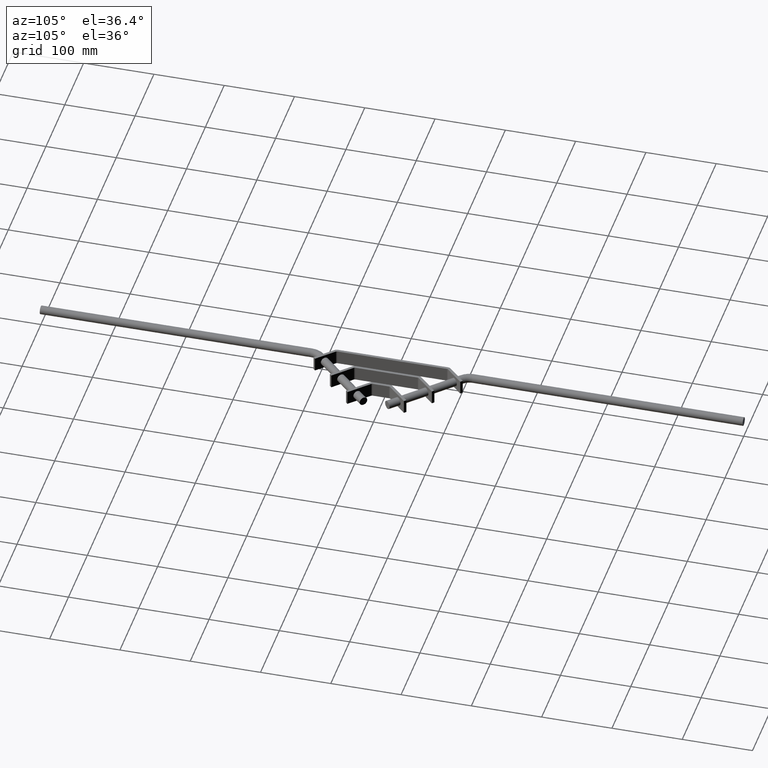
[diagram: clean part render]
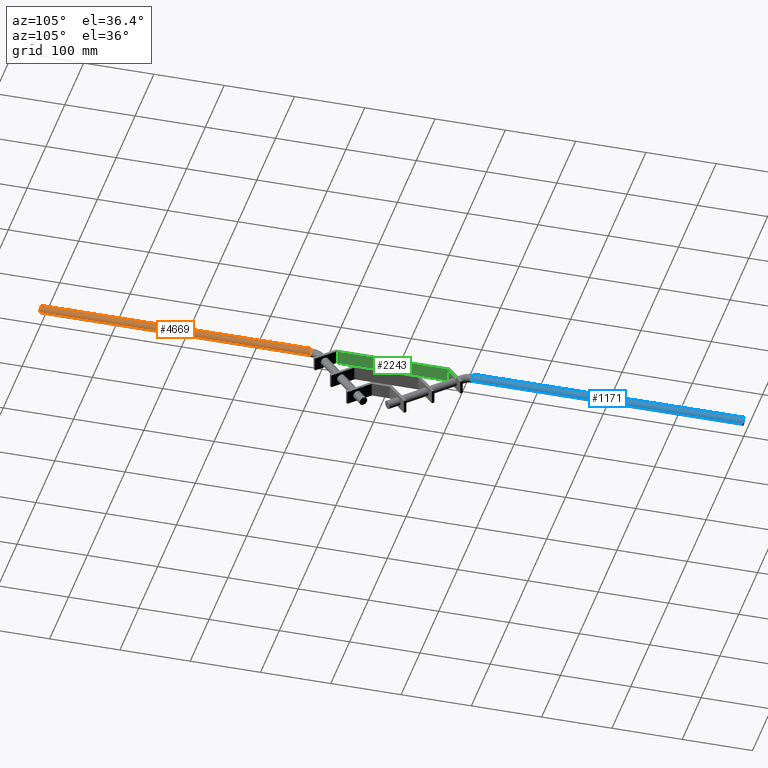
[diagram: same view with three faces highlighted in distinct colors, each labeled with its STEP entity id]
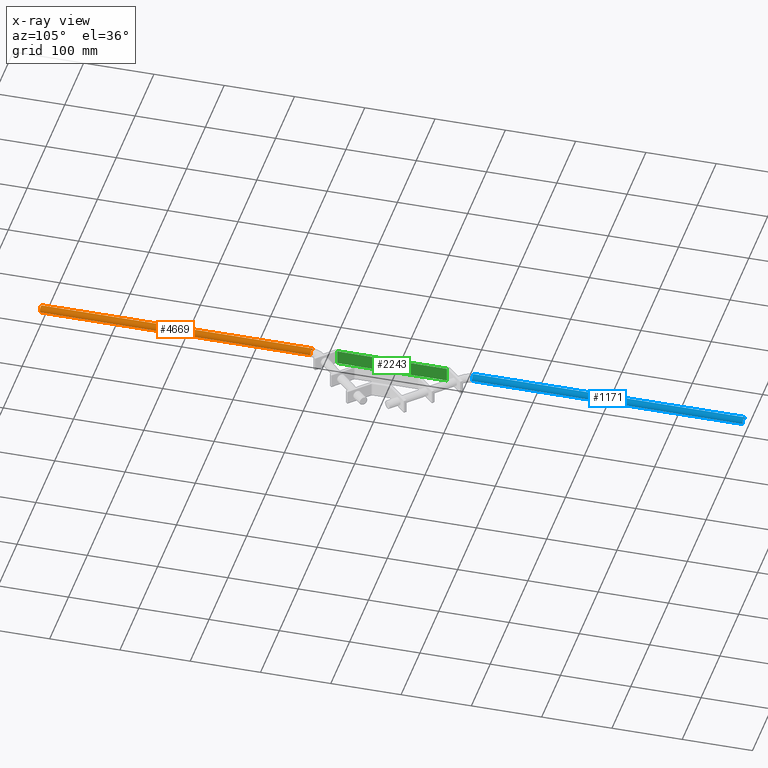
[diagram: x-ray of the same camera — body ghosted, the three highlighted faces saturated]
A machine part, auxiliary view with three faces highlighted in distinct colors.
The next image is the same camera in x-ray (body ghosted, the three faces saturated) — at least one of them is partly hidden behind the body in this view.
Their STEP definitions:

[orange] entity #4669 — the highlighted cylindrical surface (edge-blend (fillet) strip) has radius 6 mm, axis along (0, -1, -0).
#81 = CARTESIAN_POINT ( 'NONE',  ( 5.999999999998562900, 385.0000000000000000, 0.0000000000000000000 ) ) ;
#168 = CARTESIAN_POINT ( 'NONE',  ( -1.438518118988952300E-012, 385.0000000000000000, 0.0000000000000000000 ) ) ;
#209 = DIRECTION ( 'NONE',  ( 1.000000000000000000, 0.0000000000000000000, 0.0000000000000000000 ) ) ;
#376 = VECTOR ( 'NONE', #3222, 1000.000000000000000 ) ;
#455 = EDGE_CURVE ( 'NONE', #661, #5381, #4610, .T. ) ;
#470 = AXIS2_PLACEMENT_3D ( 'NONE', #5562, #1893, #6149 ) ;
#569 = LINE ( 'NONE', #81, #376 ) ;
#661 = VERTEX_POINT ( 'NONE', #3376 ) ;
#819 = DIRECTION ( 'NONE',  ( 0.0000000000000000000, 0.0000000000000000000, 1.000000000000000000 ) ) ;
#918 = CARTESIAN_POINT ( 'NONE',  ( 5.999999999998562900, 385.0000000000000000, 0.0000000000000000000 ) ) ;
#1893 = DIRECTION ( 'NONE',  ( 0.0000000000000000000, 1.000000000000000000, 0.0000000000000000000 ) ) ;
#2014 = VERTEX_POINT ( 'NONE', #6113 ) ;
#2135 = DIRECTION ( 'NONE',  ( 3.736410698672603700E-015, -1.000000000000000000, -0.0000000000000000000 ) ) ;
#2162 = CARTESIAN_POINT ( 'NONE',  ( -6.000000000001438800, 385.0000000000000000, 7.347880794884120700E-016 ) ) ;
#3222 = DIRECTION ( 'NONE',  ( 3.736410698672603700E-015, -1.000000000000000000, -0.0000000000000000000 ) ) ;
#3376 = CARTESIAN_POINT ( 'NONE',  ( -6.000000000001438800, 385.0000000000000000, 7.347880794885001300E-016 ) ) ;
#3384 = FACE_OUTER_BOUND ( 'NONE', #7785, .T. ) ;
#3504 = EDGE_CURVE ( 'NONE', #5381, #3822, #569, .T. ) ;
#3602 = AXIS2_PLACEMENT_3D ( 'NONE', #168, #4538, #819 ) ;
#3650 = EDGE_CURVE ( 'NONE', #661, #2014, #3771, .T. ) ;
#3771 = LINE ( 'NONE', #2162, #6984 ) ;
#3822 = VERTEX_POINT ( 'NONE', #5323 ) ;
#3829 = ORIENTED_EDGE ( 'NONE', *, *, #3504, .F. ) ;
#4538 = DIRECTION ( 'NONE',  ( 0.0000000000000000000, 1.000000000000000000, 0.0000000000000000000 ) ) ;
#4575 = CARTESIAN_POINT ( 'NONE',  ( -1.438518118988952300E-012, 385.0000000000000000, 0.0000000000000000000 ) ) ;
#4610 = CIRCLE ( 'NONE', #3602, 6.000000000000000900 ) ;
#4638 = CYLINDRICAL_SURFACE ( 'NONE', #7240, 6.000000000000000900 ) ;
#4669 = ADVANCED_FACE ( 'NONE', ( #3384 ), #4638, .T. ) ;
#5323 = CARTESIAN_POINT ( 'NONE',  ( 6.000000000000000900, 0.0000000000000000000, 0.0000000000000000000 ) ) ;
#5381 = VERTEX_POINT ( 'NONE', #918 ) ;
#5562 = CARTESIAN_POINT ( 'NONE',  ( 0.0000000000000000000, 0.0000000000000000000, 0.0000000000000000000 ) ) ;
#5566 = CIRCLE ( 'NONE', #470, 6.000000000000000900 ) ;
#6113 = CARTESIAN_POINT ( 'NONE',  ( -6.000000000000000900, 0.0000000000000000000, 7.347880794884120700E-016 ) ) ;
#6149 = DIRECTION ( 'NONE',  ( 0.0000000000000000000, 0.0000000000000000000, 1.000000000000000000 ) ) ;
#6174 = ORIENTED_EDGE ( 'NONE', *, *, #3650, .T. ) ;
#6406 = DIRECTION ( 'NONE',  ( 3.736410698672603700E-015, -1.000000000000000000, -0.0000000000000000000 ) ) ;
#6730 = EDGE_CURVE ( 'NONE', #2014, #3822, #5566, .T. ) ;
#6984 = VECTOR ( 'NONE', #6406, 1000.000000000000000 ) ;
#7219 = ORIENTED_EDGE ( 'NONE', *, *, #6730, .T. ) ;
#7240 = AXIS2_PLACEMENT_3D ( 'NONE', #4575, #2135, #209 ) ;
#7785 = EDGE_LOOP ( 'NONE', ( #7948, #6174, #7219, #3829 ) ) ;
#7948 = ORIENTED_EDGE ( 'NONE', *, *, #455, .F. ) ;

[blue] entity #1171 — the highlighted cylindrical surface (edge-blend (fillet) strip) has radius 6 mm, axis along (-0, 1, -0).
#76 = DIRECTION ( 'NONE',  ( -1.000000000000000000, 0.0000000000000000000, 0.0000000000000000000 ) ) ;
#94 = CIRCLE ( 'NONE', #3044, 6.000000000000000900 ) ;
#159 = ORIENTED_EDGE ( 'NONE', *, *, #6440, .T. ) ;
#176 = LINE ( 'NONE', #6382, #6916 ) ;
#299 = VERTEX_POINT ( 'NONE', #997 ) ;
#734 = CARTESIAN_POINT ( 'NONE',  ( 4.603571906427567900E-014, 615.0000000000000000, 0.0000000000000000000 ) ) ;
#845 = EDGE_CURVE ( 'NONE', #3166, #5171, #94, .T. ) ;
#989 = ORIENTED_EDGE ( 'NONE', *, *, #1801, .T. ) ;
#997 = CARTESIAN_POINT ( 'NONE',  ( -5.999999999999954700, 615.0000000000000000, 0.0000000000000000000 ) ) ;
#1167 = FACE_OUTER_BOUND ( 'NONE', #4222, .T. ) ;
#1171 = ADVANCED_FACE ( 'NONE', ( #1167 ), #6901, .T. ) ;
#1240 = CARTESIAN_POINT ( 'NONE',  ( 6.000000000000000900, 1000.000000000000000, 7.347880794884120700E-016 ) ) ;
#1377 = DIRECTION ( 'NONE',  ( 0.0000000000000000000, 0.0000000000000000000, 1.000000000000000000 ) ) ;
#1650 = DIRECTION ( 'NONE',  ( 0.0000000000000000000, 1.000000000000000000, 0.0000000000000000000 ) ) ;
#1801 = EDGE_CURVE ( 'NONE', #2644, #5171, #3207, .T. ) ;
#2644 = VERTEX_POINT ( 'NONE', #7385 ) ;
#2821 = EDGE_CURVE ( 'NONE', #299, #3166, #176, .T. ) ;
#3044 = AXIS2_PLACEMENT_3D ( 'NONE', #5344, #1650, #5932 ) ;
#3166 = VERTEX_POINT ( 'NONE', #5624 ) ;
#3207 = LINE ( 'NONE', #5382, #7819 ) ;
#3835 = DIRECTION ( 'NONE',  ( -1.195732962708459300E-016, 1.000000000000000000, -0.0000000000000000000 ) ) ;
#4222 = EDGE_LOOP ( 'NONE', ( #159, #989, #7073, #4708 ) ) ;
#4609 = DIRECTION ( 'NONE',  ( -1.195732962708459300E-016, 1.000000000000000000, -0.0000000000000000000 ) ) ;
#4708 = ORIENTED_EDGE ( 'NONE', *, *, #2821, .F. ) ;
#4947 = AXIS2_PLACEMENT_3D ( 'NONE', #6836, #3835, #76 ) ;
#4948 = AXIS2_PLACEMENT_3D ( 'NONE', #734, #5078, #1377 ) ;
#5078 = DIRECTION ( 'NONE',  ( 0.0000000000000000000, 1.000000000000000000, 0.0000000000000000000 ) ) ;
#5171 = VERTEX_POINT ( 'NONE', #1240 ) ;
#5344 = CARTESIAN_POINT ( 'NONE',  ( 0.0000000000000000000, 1000.000000000000000, 0.0000000000000000000 ) ) ;
#5382 = CARTESIAN_POINT ( 'NONE',  ( 6.000000000000047100, 615.0000000000000000, 7.347880794884120700E-016 ) ) ;
#5624 = CARTESIAN_POINT ( 'NONE',  ( -6.000000000000001800, 1000.000000000000000, 0.0000000000000000000 ) ) ;
#5932 = DIRECTION ( 'NONE',  ( 0.0000000000000000000, 0.0000000000000000000, 1.000000000000000000 ) ) ;
#6382 = CARTESIAN_POINT ( 'NONE',  ( -5.999999999999954700, 615.0000000000000000, 0.0000000000000000000 ) ) ;
#6440 = EDGE_CURVE ( 'NONE', #299, #2644, #7062, .T. ) ;
#6568 = DIRECTION ( 'NONE',  ( -1.195732962708459300E-016, 1.000000000000000000, -0.0000000000000000000 ) ) ;
#6836 = CARTESIAN_POINT ( 'NONE',  ( 4.603571906427567900E-014, 615.0000000000000000, 0.0000000000000000000 ) ) ;
#6901 = CYLINDRICAL_SURFACE ( 'NONE', #4947, 6.000000000000000900 ) ;
#6916 = VECTOR ( 'NONE', #4609, 1000.000000000000000 ) ;
#7062 = CIRCLE ( 'NONE', #4948, 6.000000000000000900 ) ;
#7073 = ORIENTED_EDGE ( 'NONE', *, *, #845, .F. ) ;
#7385 = CARTESIAN_POINT ( 'NONE',  ( 6.000000000000047100, 615.0000000000000000, 7.347880794884148300E-016 ) ) ;
#7819 = VECTOR ( 'NONE', #6568, 1000.000000000000000 ) ;

[green] entity #2243 — the highlighted planar face has unit normal (1, 0, -0).
#26 = CARTESIAN_POINT ( 'NONE',  ( 0.9483694396599265900, 422.0760171779820700, 10.00000000000000000 ) ) ;
#41 = VECTOR ( 'NONE', #7696, 1000.000000000000000 ) ;
#84 = ORIENTED_EDGE ( 'NONE', *, *, #1776, .F. ) ;
#143 = CARTESIAN_POINT ( 'NONE',  ( 0.9483694396599119400, 577.9338815542510000, -10.00000000000000000 ) ) ;
#172 = DIRECTION ( 'NONE',  ( -0.0000000000000000000, 1.000000000000000000, -0.0000000000000000000 ) ) ;
#204 = CARTESIAN_POINT ( 'NONE',  ( 0.9483694396599119400, 577.9338815542510000, -10.00000000000000000 ) ) ;
#220 = EDGE_CURVE ( 'NONE', #6422, #7184, #1412, .T. ) ;
#506 = PLANE ( 'NONE',  #3557 ) ;
#1090 = CARTESIAN_POINT ( 'NONE',  ( 0.9483694396599119400, 577.9338815542510000, -10.00000000000000000 ) ) ;
#1298 = DIRECTION ( 'NONE',  ( -0.0000000000000000000, 1.000000000000000000, -0.0000000000000000000 ) ) ;
#1323 = CARTESIAN_POINT ( 'NONE',  ( 0.9483694396599119400, 577.9338815542510000, 10.00000000000000000 ) ) ;
#1412 = LINE ( 'NONE', #1323, #4305 ) ;
#1576 = LINE ( 'NONE', #143, #6250 ) ;
#1756 = LINE ( 'NONE', #5337, #41 ) ;
#1776 = EDGE_CURVE ( 'NONE', #6142, #6422, #4835, .T. ) ;
#1952 = VECTOR ( 'NONE', #2683, 1000.000000000000000 ) ;
#2243 = ADVANCED_FACE ( 'NONE', ( #3299 ), #506, .T. ) ;
#2420 = DIRECTION ( 'NONE',  ( -0.0000000000000000000, 0.0000000000000000000, -1.000000000000000000 ) ) ;
#2683 = DIRECTION ( 'NONE',  ( 0.0000000000000000000, 0.0000000000000000000, 1.000000000000000000 ) ) ;
#2884 = EDGE_LOOP ( 'NONE', ( #7396, #3605, #84, #7119 ) ) ;
#3278 = EDGE_CURVE ( 'NONE', #6142, #3335, #1576, .T. ) ;
#3299 = FACE_OUTER_BOUND ( 'NONE', #2884, .T. ) ;
#3335 = VERTEX_POINT ( 'NONE', #204 ) ;
#3557 = AXIS2_PLACEMENT_3D ( 'NONE', #1090, #6060, #2420 ) ;
#3605 = ORIENTED_EDGE ( 'NONE', *, *, #220, .F. ) ;
#4305 = VECTOR ( 'NONE', #1298, 1000.000000000000000 ) ;
#4816 = CARTESIAN_POINT ( 'NONE',  ( 0.9483694396599265900, 422.0760171779820700, -10.00000000000000000 ) ) ;
#4835 = LINE ( 'NONE', #5705, #1952 ) ;
#4867 = EDGE_CURVE ( 'NONE', #3335, #7184, #1756, .T. ) ;
#5337 = CARTESIAN_POINT ( 'NONE',  ( 0.9483694396599119400, 577.9338815542510000, -10.00000000000000000 ) ) ;
#5610 = CARTESIAN_POINT ( 'NONE',  ( 0.9483694396599119400, 577.9338815542510000, 10.00000000000000000 ) ) ;
#5705 = CARTESIAN_POINT ( 'NONE',  ( 0.9483694396599265900, 422.0760171779820700, -10.00000000000000000 ) ) ;
#6060 = DIRECTION ( 'NONE',  ( 1.000000000000000000, 0.0000000000000000000, -0.0000000000000000000 ) ) ;
#6142 = VERTEX_POINT ( 'NONE', #4816 ) ;
#6250 = VECTOR ( 'NONE', #172, 1000.000000000000000 ) ;
#6422 = VERTEX_POINT ( 'NONE', #26 ) ;
#7119 = ORIENTED_EDGE ( 'NONE', *, *, #3278, .T. ) ;
#7184 = VERTEX_POINT ( 'NONE', #5610 ) ;
#7396 = ORIENTED_EDGE ( 'NONE', *, *, #4867, .T. ) ;
#7696 = DIRECTION ( 'NONE',  ( 0.0000000000000000000, 0.0000000000000000000, 1.000000000000000000 ) ) ;